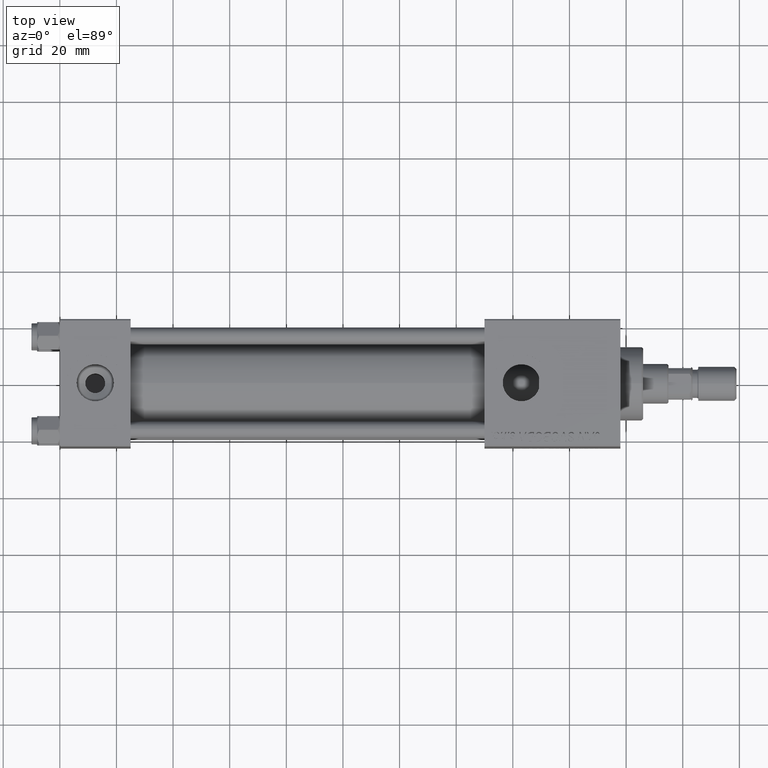
[diagram: clean part render]
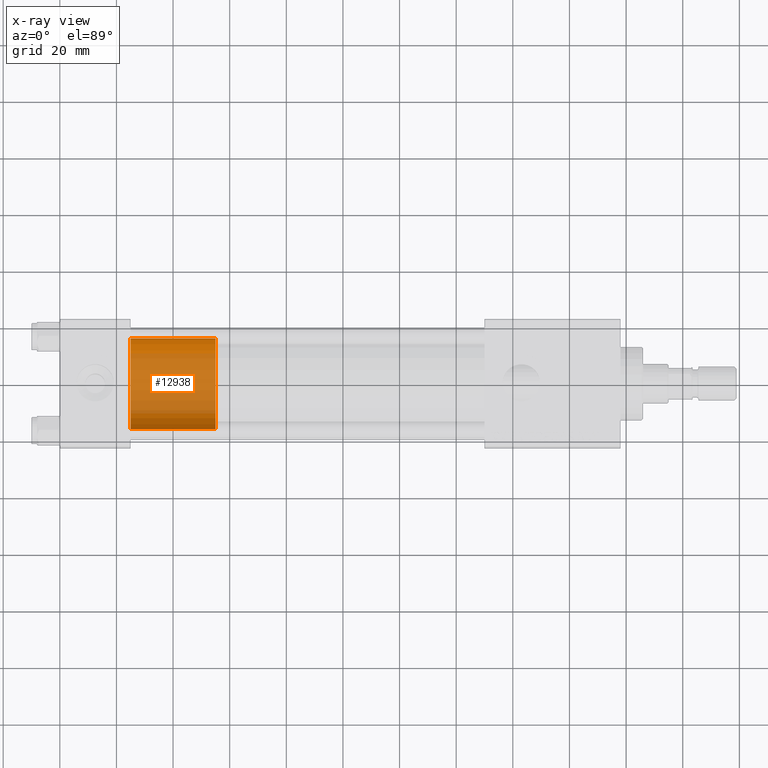
[diagram: x-ray — body ghosted, one internal face saturated and labeled with its STEP entity id]
A machine part, top view, then the same camera in x-ray: the body is ghosted and one INTERNAL B-rep face — a face not visible from any outside direction — is saturated and labeled: STEP entity #12938.
In plain terms, the highlighted cylindrical surface (partial cylindrical patch) has radius 16 mm, axis along (-1, 0, 0).
Its self-contained STEP definition (entity closure, byte-faithful):
#146 = DIRECTION ( 'NONE',  ( -0.000000000000000000, -0.000000000000000000, -1.000000000000000000 ) ) ;
#1350 = AXIS2_PLACEMENT_3D ( 'NONE', #2824, #31600, #47821 ) ;
#2824 = CARTESIAN_POINT ( 'NONE',  ( 0.000000000000000000, 0.000000000000000000, 30.00000000000000000 ) ) ;
#5103 = CARTESIAN_POINT ( 'NONE',  ( -16.00000000000000000, 0.000000000000000000, 30.00000000000000000 ) ) ;
#6729 = CARTESIAN_POINT ( 'NONE',  ( 16.00000000000000000, 1.959434878635765131E-15, 0.000000000000000000 ) ) ;
#8831 = VERTEX_POINT ( 'NONE', #39739 ) ;
#12938 = ADVANCED_FACE ( 'NONE', ( #27068 ), #23088, .T. ) ;
#17981 = CIRCLE ( 'NONE', #41806, 16.00000000000000000 ) ;
#19311 = CARTESIAN_POINT ( 'NONE',  ( 0.000000000000000000, 0.000000000000000000, 0.000000000000000000 ) ) ;
#20044 = CARTESIAN_POINT ( 'NONE',  ( 16.00000000000000000, 1.959434878635765131E-15, 30.00000000000000000 ) ) ;
#21594 = CIRCLE ( 'NONE', #29240, 16.00000000000000000 ) ;
#21942 = ORIENTED_EDGE ( 'NONE', *, *, #36805, .T. ) ;
#22694 = EDGE_LOOP ( 'NONE', ( #48573, #46379, #21942, #27940 ) ) ;
#23088 = CYLINDRICAL_SURFACE ( 'NONE', #1350, 16.00000000000000000 ) ;
#27068 = FACE_OUTER_BOUND ( 'NONE', #22694, .T. ) ;
#27859 = CARTESIAN_POINT ( 'NONE',  ( -16.00000000000000000, 0.000000000000000000, 30.00000000000000000 ) ) ;
#27940 = ORIENTED_EDGE ( 'NONE', *, *, #41289, .F. ) ;
#28259 = DIRECTION ( 'NONE',  ( -0.000000000000000000, -0.000000000000000000, -1.000000000000000000 ) ) ;
#29108 = EDGE_CURVE ( 'NONE', #35214, #45935, #17981, .T. ) ;
#29240 = AXIS2_PLACEMENT_3D ( 'NONE', #19311, #32345, #32613 ) ;
#30178 = DIRECTION ( 'NONE',  ( 1.000000000000000000, 0.000000000000000000, 0.000000000000000000 ) ) ;
#31600 = DIRECTION ( 'NONE',  ( -0.000000000000000000, -0.000000000000000000, -1.000000000000000000 ) ) ;
#31973 = CARTESIAN_POINT ( 'NONE',  ( 16.00000000000000000, 1.959434878635765131E-15, 30.00000000000000000 ) ) ;
#32345 = DIRECTION ( 'NONE',  ( 0.000000000000000000, 0.000000000000000000, 1.000000000000000000 ) ) ;
#32613 = DIRECTION ( 'NONE',  ( 1.000000000000000000, 0.000000000000000000, 0.000000000000000000 ) ) ;
#35214 = VERTEX_POINT ( 'NONE', #20044 ) ;
#35707 = LINE ( 'NONE', #31973, #50053 ) ;
#35849 = LINE ( 'NONE', #27859, #41316 ) ;
#36805 = EDGE_CURVE ( 'NONE', #45757, #8831, #21594, .T. ) ;
#37891 = DIRECTION ( 'NONE',  ( 0.000000000000000000, 0.000000000000000000, 1.000000000000000000 ) ) ;
#39739 = CARTESIAN_POINT ( 'NONE',  ( -16.00000000000000000, 0.000000000000000000, 0.000000000000000000 ) ) ;
#41289 = EDGE_CURVE ( 'NONE', #45935, #8831, #35849, .T. ) ;
#41316 = VECTOR ( 'NONE', #146, 1000.000000000000000 ) ;
#41806 = AXIS2_PLACEMENT_3D ( 'NONE', #44853, #37891, #30178 ) ;
#44853 = CARTESIAN_POINT ( 'NONE',  ( 0.000000000000000000, 0.000000000000000000, 30.00000000000000000 ) ) ;
#45757 = VERTEX_POINT ( 'NONE', #6729 ) ;
#45935 = VERTEX_POINT ( 'NONE', #5103 ) ;
#46379 = ORIENTED_EDGE ( 'NONE', *, *, #51490, .T. ) ;
#47821 = DIRECTION ( 'NONE',  ( -1.000000000000000000, 0.000000000000000000, 0.000000000000000000 ) ) ;
#48573 = ORIENTED_EDGE ( 'NONE', *, *, #29108, .F. ) ;
#50053 = VECTOR ( 'NONE', #28259, 1000.000000000000000 ) ;
#51490 = EDGE_CURVE ( 'NONE', #35214, #45757, #35707, .T. ) ;